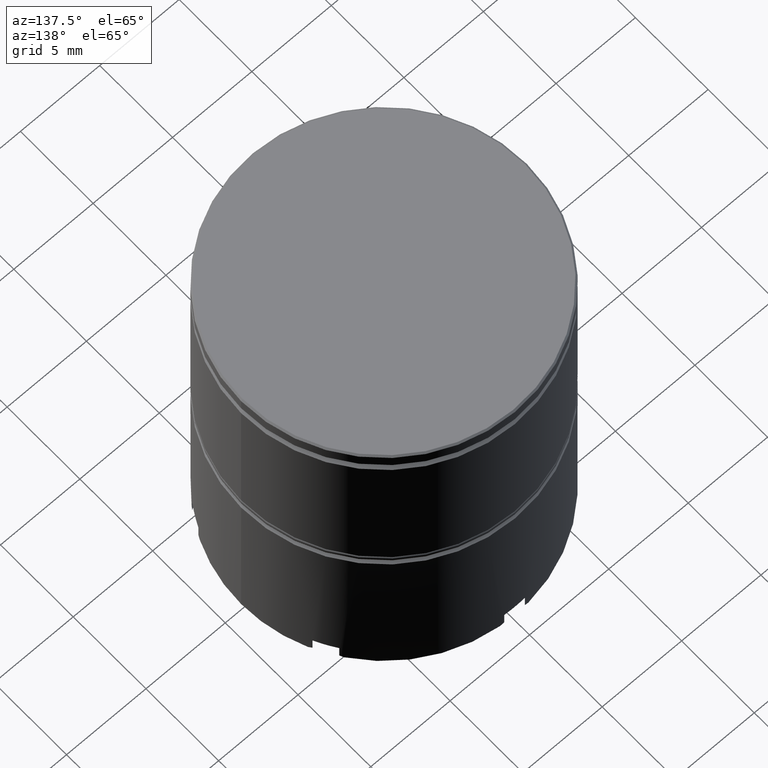
[diagram: clean part render]
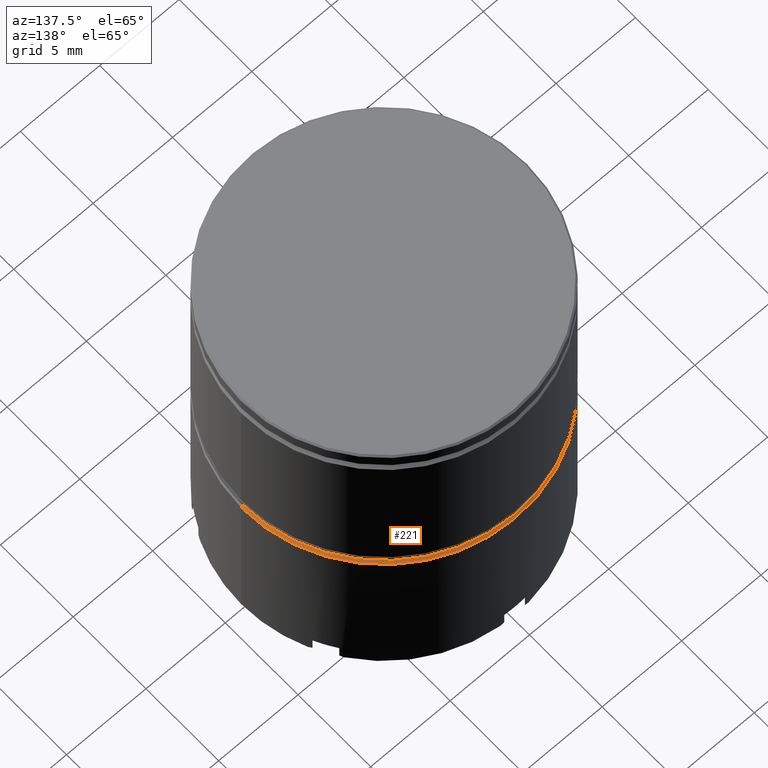
[diagram: same view with one face highlighted and labeled with its STEP entity id]
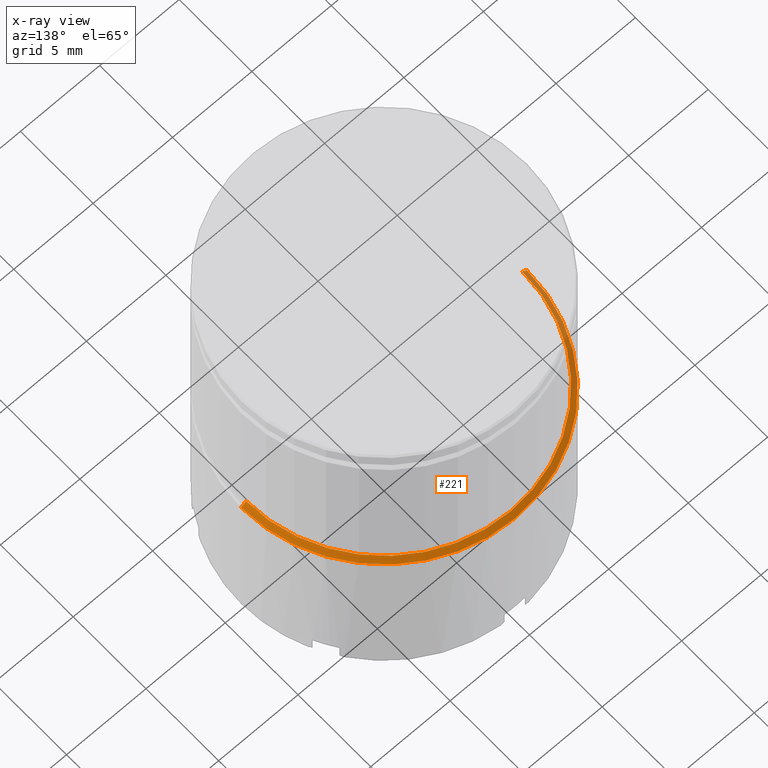
[diagram: x-ray of the same camera — body ghosted, the highlighted face saturated]
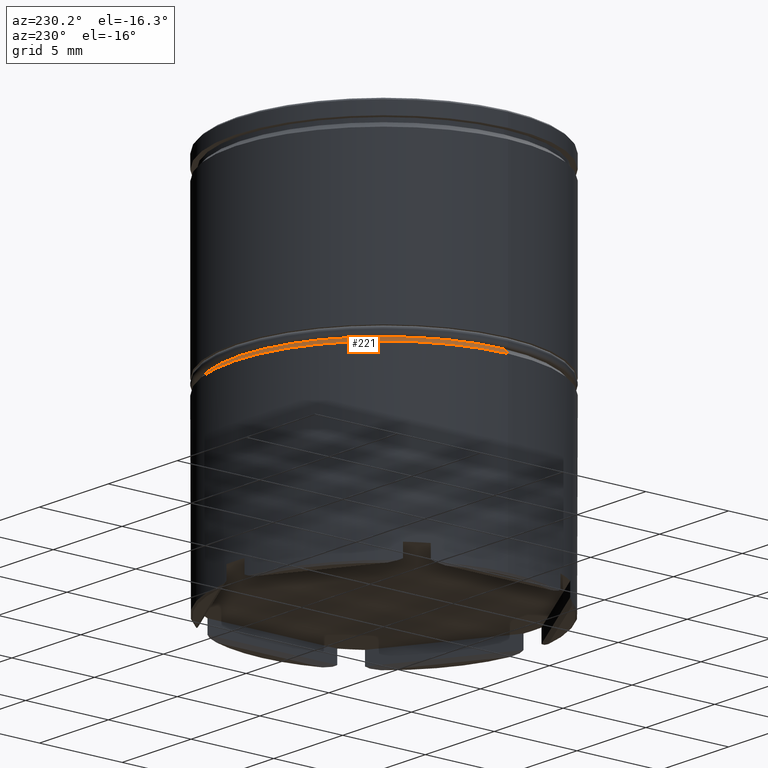
[diagram: same view with one face highlighted and labeled with its STEP entity id]
A machine part, auxiliary view. The second image highlights one B-rep face of the part: STEP entity #221.
The next image is the same camera in x-ray: the body ghosted, the highlighted face saturated — about 16% of this face is hidden behind the body in this view.
A second angle (auxiliary view) of the same face is appended — the face is thin or edge-on in the first view.
In plain terms, the highlighted conical surface has half-angle 45 deg.
Its self-contained STEP definition (entity closure, byte-faithful):
#105 = DIRECTION ( 'NONE',  ( 0.7071067811865392461, 8.659560562354833018E-17, -0.7071067811865556774 ) ) ;
#109 = CARTESIAN_POINT ( 'NONE',  ( 8.699999999999999289, 0.000000000000000000, -11.50000000000000000 ) ) ;
#112 = DIRECTION ( 'NONE',  ( -0.000000000000000000, -0.000000000000000000, 1.000000000000000000 ) ) ;
#144 = CARTESIAN_POINT ( 'NONE',  ( -9.000000000000000000, 1.102182119232617714E-15, -11.80000000000000249 ) ) ;
#163 = ORIENTED_EDGE ( 'NONE', *, *, #1089, .F. ) ;
#196 = CARTESIAN_POINT ( 'NONE',  ( 9.000000000000000000, 0.000000000000000000, -11.80000000000000249 ) ) ;
#221 = ADVANCED_FACE ( 'NONE', ( #235 ), #1099, .T. ) ;
#235 = FACE_OUTER_BOUND ( 'NONE', #982, .T. ) ;
#335 = CARTESIAN_POINT ( 'NONE',  ( 0.000000000000000000, 0.000000000000000000, -11.50000000000000000 ) ) ;
#349 = CARTESIAN_POINT ( 'NONE',  ( 8.700000000000002842, 1.065442715258197643E-15, -11.50000000000000000 ) ) ;
#434 = ORIENTED_EDGE ( 'NONE', *, *, #1622, .T. ) ;
#466 = DIRECTION ( 'NONE',  ( 1.000000000000000000, 0.000000000000000000, 0.000000000000000000 ) ) ;
#563 = VERTEX_POINT ( 'NONE', #907 ) ;
#570 = CARTESIAN_POINT ( 'NONE',  ( 0.000000000000000000, 0.000000000000000000, -11.80000000000000249 ) ) ;
#577 = AXIS2_PLACEMENT_3D ( 'NONE', #570, #1448, #466 ) ;
#597 = AXIS2_PLACEMENT_3D ( 'NONE', #335, #1244, #598 ) ;
#598 = DIRECTION ( 'NONE',  ( -1.000000000000000000, 0.000000000000000000, 0.000000000000000000 ) ) ;
#612 = ORIENTED_EDGE ( 'NONE', *, *, #1167, .F. ) ;
#704 = AXIS2_PLACEMENT_3D ( 'NONE', #1243, #112, #869 ) ;
#715 = VERTEX_POINT ( 'NONE', #144 ) ;
#809 = CIRCLE ( 'NONE', #577, 9.000000000000000000 ) ;
#869 = DIRECTION ( 'NONE',  ( 1.000000000000000000, 0.000000000000000000, 0.000000000000000000 ) ) ;
#907 = CARTESIAN_POINT ( 'NONE',  ( -8.699999999999999289, 1.065442715258197248E-15, -11.50000000000000000 ) ) ;
#979 = EDGE_CURVE ( 'NONE', #563, #715, #1458, .T. ) ;
#982 = EDGE_LOOP ( 'NONE', ( #612, #434, #163, #1422 ) ) ;
#990 = LINE ( 'NONE', #349, #1461 ) ;
#1022 = VERTEX_POINT ( 'NONE', #196 ) ;
#1089 = EDGE_CURVE ( 'NONE', #715, #1022, #809, .T. ) ;
#1091 = DIRECTION ( 'NONE',  ( -0.7071067811865392461, 0.000000000000000000, -0.7071067811865556774 ) ) ;
#1099 = CONICAL_SURFACE ( 'NONE', #597, 8.700000000000002842, 0.7853981633974367327 ) ;
#1167 = EDGE_CURVE ( 'NONE', #1231, #563, #1590, .T. ) ;
#1205 = CARTESIAN_POINT ( 'NONE',  ( -8.700000000000002842, 0.000000000000000000, -11.50000000000000000 ) ) ;
#1217 = VECTOR ( 'NONE', #1091, 1000.000000000000114 ) ;
#1231 = VERTEX_POINT ( 'NONE', #109 ) ;
#1243 = CARTESIAN_POINT ( 'NONE',  ( 0.000000000000000000, 0.000000000000000000, -11.50000000000000000 ) ) ;
#1244 = DIRECTION ( 'NONE',  ( 0.000000000000000000, 0.000000000000000000, -1.000000000000000000 ) ) ;
#1422 = ORIENTED_EDGE ( 'NONE', *, *, #979, .F. ) ;
#1448 = DIRECTION ( 'NONE',  ( 0.000000000000000000, 0.000000000000000000, -1.000000000000000000 ) ) ;
#1458 = LINE ( 'NONE', #1205, #1217 ) ;
#1461 = VECTOR ( 'NONE', #105, 1000.000000000000114 ) ;
#1590 = CIRCLE ( 'NONE', #704, 8.699999999999999289 ) ;
#1622 = EDGE_CURVE ( 'NONE', #1231, #1022, #990, .T. ) ;